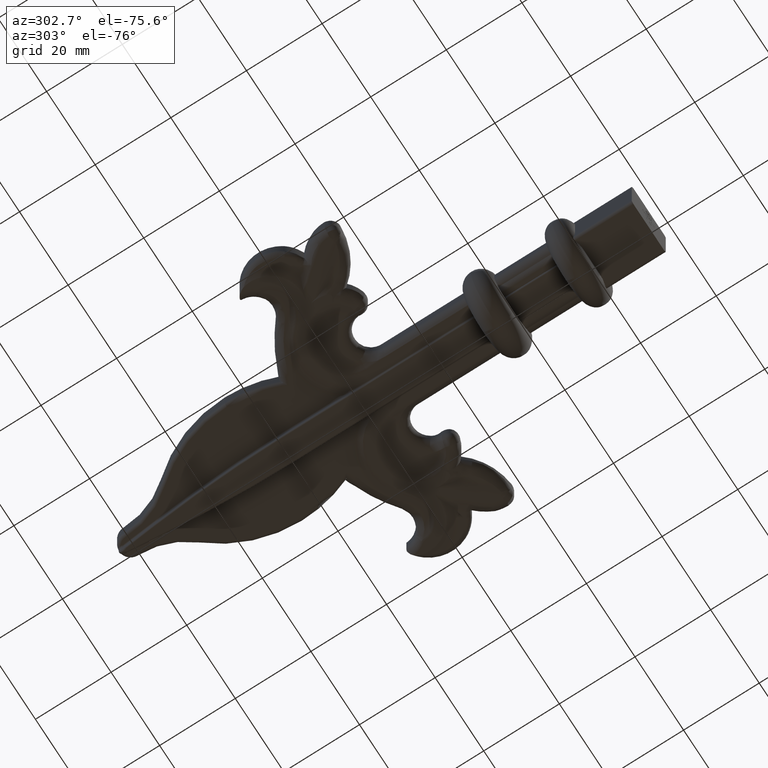
[diagram: clean part render]
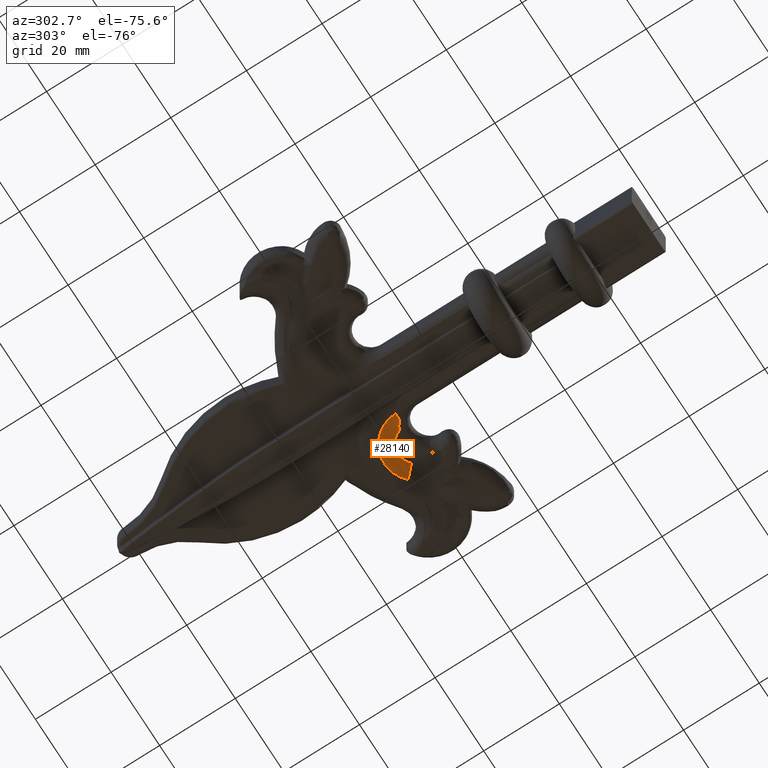
[diagram: same view with one face highlighted and labeled with its STEP entity id]
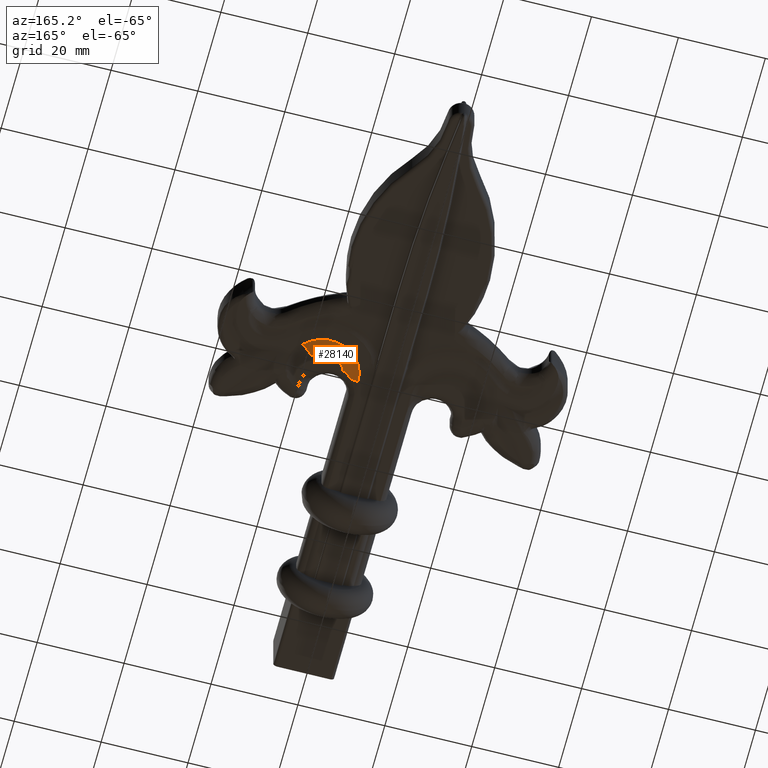
[diagram: same view with one face highlighted and labeled with its STEP entity id]
A machine part, auxiliary view. The second image highlights one B-rep face of the part: STEP entity #28140.
A second angle (auxiliary view) of the same face is appended — the face is thin or edge-on in the first view.
In plain terms, the highlighted toroidal blend (fillet) surface has major radius 4.6269 mm and minor (blend) radius 9 mm.
Its self-contained STEP definition (entity closure, byte-faithful):
#869 = CARTESIAN_POINT ( 'NONE',  ( 9.699033882264986417, 57.27731187630675436, -3.499999999999999112 ) ) ;
#1704 = ORIENTED_EDGE ( 'NONE', *, *, #23829, .F. ) ;
#1846 = EDGE_CURVE ( 'NONE', #19963, #8564, #19419, .T. ) ;
#2615 = AXIS2_PLACEMENT_3D ( 'NONE', #18333, #2845, #4949 ) ;
#2830 = CARTESIAN_POINT ( 'NONE',  ( 7.908991044574242402, 55.97131815693765589, -3.716933683927196697 ) ) ;
#2845 = DIRECTION ( 'NONE',  ( -0.000000000000000000, -0.000000000000000000, 1.000000000000000000 ) ) ;
#3498 = CIRCLE ( 'NONE', #2615, 8.267558856289795699 ) ;
#4245 = CIRCLE ( 'NONE', #27537, 8.999999999999994671 ) ;
#4874 = ORIENTED_EDGE ( 'NONE', *, *, #7054, .F. ) ;
#4949 = DIRECTION ( 'NONE',  ( 1.000000000000000000, 0.000000000000000000, 0.000000000000000000 ) ) ;
#4974 = VERTEX_POINT ( 'NONE', #18801 ) ;
#5771 = CARTESIAN_POINT ( 'NONE',  ( 17.82301305820192638, 59.19090442953702791, -12.49999999999999822 ) ) ;
#6132 = ORIENTED_EDGE ( 'NONE', *, *, #9802, .F. ) ;
#6835 = ORIENTED_EDGE ( 'NONE', *, *, #14119, .T. ) ;
#6919 = AXIS2_PLACEMENT_3D ( 'NONE', #27138, #13651, #27045 ) ;
#6943 = CARTESIAN_POINT ( 'NONE',  ( 20.43772059959150056, 61.72423076911962880, -4.269230769230768274 ) ) ;
#7054 = EDGE_CURVE ( 'NONE', #4974, #21719, #4245, .T. ) ;
#8242 = DIRECTION ( 'NONE',  ( -0.6958417487170676097, 0.7181951411297443633, -0.000000000000000000 ) ) ;
#8385 = CARTESIAN_POINT ( 'NONE',  ( 10.11540521886871957, 57.44897852284296391, -3.499999999999999556 ) ) ;
#8564 = VERTEX_POINT ( 'NONE', #23301 ) ;
#9802 = EDGE_CURVE ( 'NONE', #21719, #19963, #3498, .T. ) ;
#10986 = AXIS2_PLACEMENT_3D ( 'NONE', #26989, #22380, #20423 ) ;
#11295 = DIRECTION ( 'NONE',  ( -0.000000000000000000, -0.000000000000000000, 1.000000000000000000 ) ) ;
#11407 = AXIS2_PLACEMENT_3D ( 'NONE', #13625, #11295, #26711 ) ;
#11741 = CARTESIAN_POINT ( 'NONE',  ( 8.561006251685395085, 56.57097204476083618, -3.593419196582667841 ) ) ;
#12063 = FACE_OUTER_BOUND ( 'NONE', #19384, .T. ) ;
#13625 = CARTESIAN_POINT ( 'NONE',  ( 14.49999999999998757, 55.97131815693765589, -12.49999999999999822 ) ) ;
#13651 = DIRECTION ( 'NONE',  ( -0.000000000000000000, -0.000000000000000000, 1.000000000000000000 ) ) ;
#14119 = EDGE_CURVE ( 'NONE', #4974, #19948, #17153, .T. ) ;
#16391 = CARTESIAN_POINT ( 'NONE',  ( 10.11540521886871957, 57.44897852284296391, -3.499999999999999556 ) ) ;
#17153 = CIRCLE ( 'NONE', #6919, 4.626894374382338526 ) ;
#18333 = CARTESIAN_POINT ( 'NONE',  ( 14.49999999999998757, 55.97131815693765589, -4.269230769230771827 ) ) ;
#18801 = CARTESIAN_POINT ( 'NONE',  ( 17.82301305820192638, 59.19090442953702791, -3.499999999999999556 ) ) ;
#19155 = DIRECTION ( 'NONE',  ( 0.7181951411297446963, 0.6958417487170673876, 0.000000000000000000 ) ) ;
#19384 = EDGE_LOOP ( 'NONE', ( #4874, #6835, #1704, #26519, #6132 ) ) ;
#19419 = CIRCLE ( 'NONE', #10986, 9.000000000000000000 ) ;
#19948 = VERTEX_POINT ( 'NONE', #8385 ) ;
#19963 = VERTEX_POINT ( 'NONE', #24281 ) ;
#20423 = DIRECTION ( 'NONE',  ( 0.000000000000000000, 0.000000000000000000, 1.000000000000000000 ) ) ;
#20882 = CARTESIAN_POINT ( 'NONE',  ( 8.220376909736117454, 56.28917491512267191, -3.647299971043116429 ) ) ;
#21719 = VERTEX_POINT ( 'NONE', #6943 ) ;
#22380 = DIRECTION ( 'NONE',  ( -0.000000000000000000, 1.000000000000000000, -0.000000000000000000 ) ) ;
#23301 = CARTESIAN_POINT ( 'NONE',  ( 7.908991044574242402, 55.97131815693765589, -3.716933683927196697 ) ) ;
#23384 = B_SPLINE_CURVE_WITH_KNOTS ( 'NONE', 3,
 ( #2830, #20882, #11741, #27243, #869, #16391 ),
 .UNSPECIFIED., .F., .F.,
 ( 4, 2, 4 ),
 ( 0.000000000000000000, 0.001334517421773549588, 0.002669034843547099176 ),
 .UNSPECIFIED. ) ;
#23829 = EDGE_CURVE ( 'NONE', #8564, #19948, #23384, .T. ) ;
#24281 = CARTESIAN_POINT ( 'NONE',  ( 6.232441143710190978, 55.97131815693765589, -4.269230769230768274 ) ) ;
#26519 = ORIENTED_EDGE ( 'NONE', *, *, #1846, .F. ) ;
#26711 = DIRECTION ( 'NONE',  ( -1.000000000000000000, 0.000000000000000000, 0.000000000000000000 ) ) ;
#26989 = CARTESIAN_POINT ( 'NONE',  ( 9.873105625617647263, 55.97131815693765589, -12.49999999999999822 ) ) ;
#27045 = DIRECTION ( 'NONE',  ( 1.000000000000000000, 0.000000000000000000, 0.000000000000000000 ) ) ;
#27138 = CARTESIAN_POINT ( 'NONE',  ( 14.49999999999998757, 55.97131815693765589, -3.499999999999999556 ) ) ;
#27243 = CARTESIAN_POINT ( 'NONE',  ( 9.299154264461888530, 57.06498677218587545, -3.519609284936027205 ) ) ;
#27537 = AXIS2_PLACEMENT_3D ( 'NONE', #5771, #8242, #19155 ) ;
#28140 = ADVANCED_FACE ( 'NONE', ( #12063 ), #28456, .F. ) ;
#28456 = TOROIDAL_SURFACE ( 'NONE', #11407, 4.626894374382339414, 9.000000000000000000 ) ;